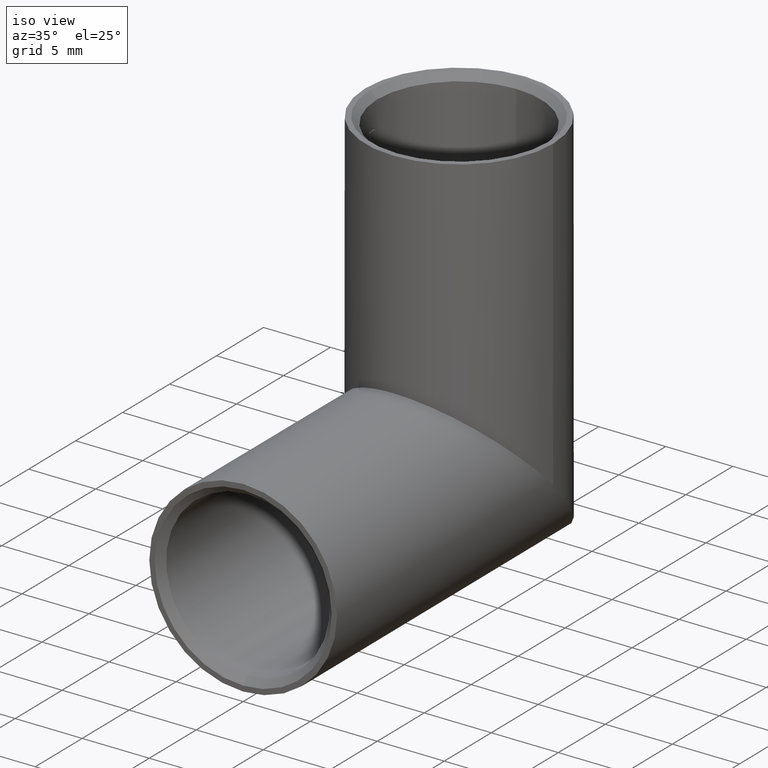
[diagram: clean part render]
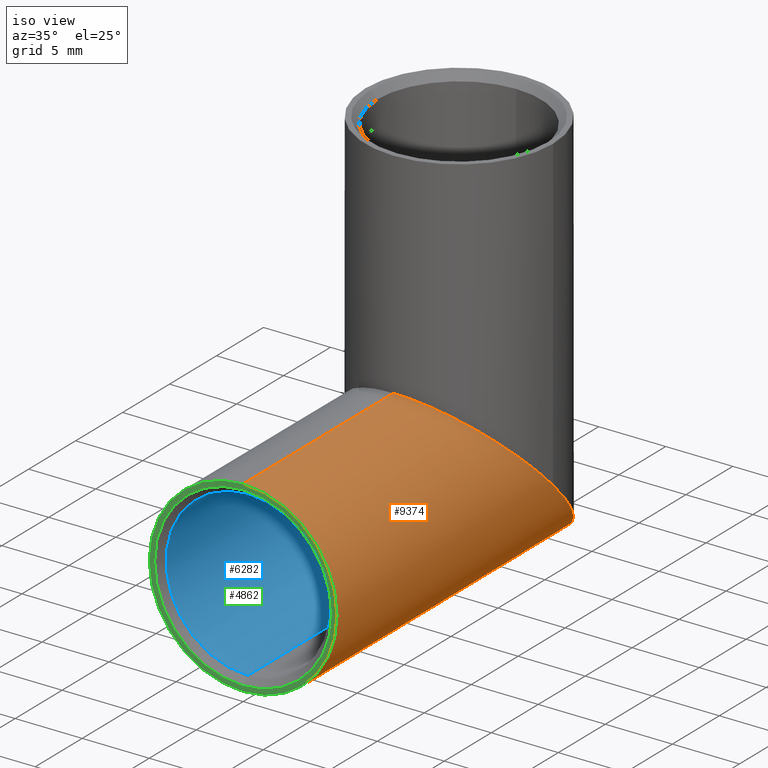
[diagram: same view with three faces highlighted in distinct colors, each labeled with its STEP entity id]
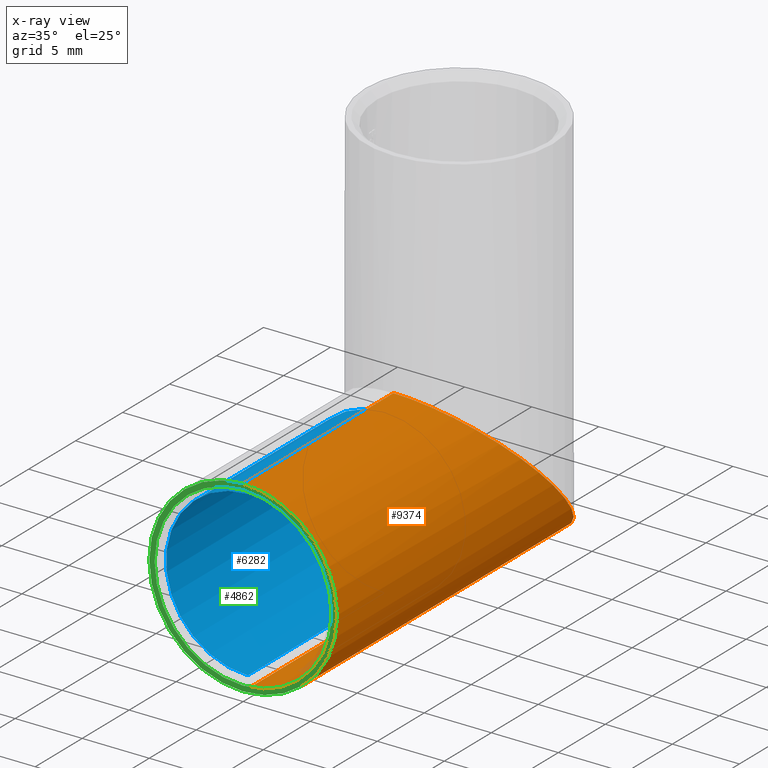
[diagram: x-ray of the same camera — body ghosted, the three highlighted faces saturated]
A machine part, iso view with three faces highlighted in distinct colors.
The next image is the same camera in x-ray (body ghosted, the three faces saturated) — at least one of them is partly hidden behind the body in this view.
Their STEP definitions:

[orange] entity #9374 — the highlighted cylindrical surface (partial cylindrical patch) has radius 7 mm, axis along (-0, -1, -0).
#20 = CARTESIAN_POINT ( 'NONE',  ( 7.000000000000001776, 18.89949493661166713, 4.100505063388334648 ) ) ;
#49 = DIRECTION ( 'NONE',  ( 0.000000000000000000, 0.000000000000000000, 1.000000000000000000 ) ) ;
#233 = CIRCLE ( 'NONE', #6719, 7.000000000000000000 ) ;
#540 = DIRECTION ( 'NONE',  ( -0.000000000000000000, -1.000000000000000000, -0.000000000000000000 ) ) ;
#1328 =( BOUNDED_CURVE ( )  B_SPLINE_CURVE ( 3, ( #3719, #8571, #12337, #11396 ),
 .UNSPECIFIED., .F., .T. ) 
 B_SPLINE_CURVE_WITH_KNOTS ( ( 4, 4 ),
 ( 1.570796326794896558, 3.141592653589793116 ),
 .UNSPECIFIED. ) 
 CURVE ( )  GEOMETRIC_REPRESENTATION_ITEM ( )  RATIONAL_B_SPLINE_CURVE ( ( 1.000000000000000000, 0.8047378541243649375, 0.8047378541243649375, 1.000000000000000000 ) ) 
 REPRESENTATION_ITEM ( '' )  );
#1496 = EDGE_CURVE ( 'NONE', #6506, #6492, #1328, .T. ) ;
#1540 = CARTESIAN_POINT ( 'NONE',  ( 8.572527594031473190E-16, 42.79898987322332715, 7.000000000000000000 ) ) ;
#1588 = EDGE_CURVE ( 'NONE', #4719, #9612, #5037, .T. ) ;
#1971 = EDGE_LOOP ( 'NONE', ( #8240, #4667, #2727, #7324, #3064 ) ) ;
#2242 = EDGE_CURVE ( 'NONE', #4719, #6506, #10195, .T. ) ;
#2411 = VERTEX_POINT ( 'NONE', #6684 ) ;
#2727 = ORIENTED_EDGE ( 'NONE', *, *, #2786, .T. ) ;
#2786 = EDGE_CURVE ( 'NONE', #9612, #2411, #233, .T. ) ;
#2975 = CARTESIAN_POINT ( 'NONE',  ( 0.000000000000000000, 0.000000000000000000, 0.000000000000000000 ) ) ;
#2976 = CYLINDRICAL_SURFACE ( 'NONE', #8872, 7.000000000000000000 ) ;
#2988 = CARTESIAN_POINT ( 'NONE',  ( 0.000000000000000000, 42.79898987322332715, 0.000000000000000000 ) ) ;
#3064 = ORIENTED_EDGE ( 'NONE', *, *, #1496, .F. ) ;
#3719 = CARTESIAN_POINT ( 'NONE',  ( 7.000000000000000000, 23.00000000000000000, 0.000000000000000000 ) ) ;
#4278 = DIRECTION ( 'NONE',  ( -0.000000000000000000, -1.000000000000000000, -0.000000000000000000 ) ) ;
#4306 = EDGE_CURVE ( 'NONE', #6492, #2411, #12334, .T. ) ;
#4430 = VECTOR ( 'NONE', #5364, 1000.000000000000000 ) ;
#4667 = ORIENTED_EDGE ( 'NONE', *, *, #1588, .T. ) ;
#4719 = VERTEX_POINT ( 'NONE', #5333 ) ;
#5037 = LINE ( 'NONE', #1540, #4430 ) ;
#5167 = DIRECTION ( 'NONE',  ( 0.000000000000000000, 0.000000000000000000, -1.000000000000000000 ) ) ;
#5333 = CARTESIAN_POINT ( 'NONE',  ( 8.572527594031473190E-16, 15.99999999999999645, 7.000000000000000000 ) ) ;
#5364 = DIRECTION ( 'NONE',  ( -0.000000000000000000, -1.000000000000000000, -0.000000000000000000 ) ) ;
#6157 = CARTESIAN_POINT ( 'NONE',  ( 0.000000000000000000, 42.79898987322332715, -7.000000000000000000 ) ) ;
#6492 = VERTEX_POINT ( 'NONE', #10904 ) ;
#6506 = VERTEX_POINT ( 'NONE', #11955 ) ;
#6684 = CARTESIAN_POINT ( 'NONE',  ( 0.000000000000000000, 0.000000000000000000, -7.000000000000000000 ) ) ;
#6719 = AXIS2_PLACEMENT_3D ( 'NONE', #2975, #7608, #49 ) ;
#7324 = ORIENTED_EDGE ( 'NONE', *, *, #4306, .F. ) ;
#7507 = CARTESIAN_POINT ( 'NONE',  ( 7.000000000000000000, 23.00000000000000000, 0.000000000000000000 ) ) ;
#7608 = DIRECTION ( 'NONE',  ( 0.000000000000000000, 1.000000000000000000, 0.000000000000000000 ) ) ;
#8240 = ORIENTED_EDGE ( 'NONE', *, *, #2242, .F. ) ;
#8335 = CARTESIAN_POINT ( 'NONE',  ( 8.572527594031473190E-16, 0.000000000000000000, 7.000000000000000000 ) ) ;
#8571 = CARTESIAN_POINT ( 'NONE',  ( 7.000000000000001776, 27.10050506338833642, -4.100505063388334648 ) ) ;
#8872 = AXIS2_PLACEMENT_3D ( 'NONE', #2988, #540, #5167 ) ;
#9374 = ADVANCED_FACE ( 'NONE', ( #11347 ), #2976, .T. ) ;
#9549 = CARTESIAN_POINT ( 'NONE',  ( 4.100505063388336424, 15.99999999999999645, 6.999999999999998224 ) ) ;
#9612 = VERTEX_POINT ( 'NONE', #8335 ) ;
#10195 =( BOUNDED_CURVE ( )  B_SPLINE_CURVE ( 3, ( #10539, #9549, #20, #7507 ),
 .UNSPECIFIED., .F., .F. ) 
 B_SPLINE_CURVE_WITH_KNOTS ( ( 4, 4 ),
 ( 1.224646799147353207E-16, 1.570796326794896558 ),
 .UNSPECIFIED. ) 
 CURVE ( )  GEOMETRIC_REPRESENTATION_ITEM ( )  RATIONAL_B_SPLINE_CURVE ( ( 1.000000000000000000, 0.8047378541243650485, 0.8047378541243650485, 1.000000000000000000 ) ) 
 REPRESENTATION_ITEM ( '' )  );
#10539 = CARTESIAN_POINT ( 'NONE',  ( 8.572527594031473190E-16, 15.99999999999999645, 7.000000000000000000 ) ) ;
#10904 = CARTESIAN_POINT ( 'NONE',  ( 0.000000000000000000, 30.00000000000000355, -7.000000000000000000 ) ) ;
#11347 = FACE_OUTER_BOUND ( 'NONE', #1971, .T. ) ;
#11396 = CARTESIAN_POINT ( 'NONE',  ( 0.000000000000000000, 30.00000000000000355, -7.000000000000000000 ) ) ;
#11712 = VECTOR ( 'NONE', #4278, 1000.000000000000000 ) ;
#11955 = CARTESIAN_POINT ( 'NONE',  ( 7.000000000000000000, 23.00000000000000000, 0.000000000000000000 ) ) ;
#12334 = LINE ( 'NONE', #6157, #11712 ) ;
#12337 = CARTESIAN_POINT ( 'NONE',  ( 4.100505063388337312, 30.00000000000000000, -6.999999999999998224 ) ) ;

[blue] entity #6282 — the highlighted cylindrical surface (partial cylindrical patch) has radius 6.1 mm, axis along (-0, -1, -0).
#336 = CARTESIAN_POINT ( 'NONE',  ( 0.000000000000000000, 15.00000000000000000, -6.099999999999999645 ) ) ;
#431 = CARTESIAN_POINT ( 'NONE',  ( 0.000000000000000000, 0.5000000000000022204, 0.000000000000000000 ) ) ;
#1191 = VERTEX_POINT ( 'NONE', #7775 ) ;
#1216 = EDGE_CURVE ( 'NONE', #1191, #6099, #2778, .T. ) ;
#1331 = AXIS2_PLACEMENT_3D ( 'NONE', #431, #2284, #6117 ) ;
#1355 = EDGE_CURVE ( 'NONE', #7873, #9371, #4284, .T. ) ;
#1817 = DIRECTION ( 'NONE',  ( 0.000000000000000000, 0.000000000000000000, -1.000000000000000000 ) ) ;
#1832 = DIRECTION ( 'NONE',  ( 0.000000000000000000, 0.000000000000000000, -1.000000000000000000 ) ) ;
#2284 = DIRECTION ( 'NONE',  ( 0.000000000000000000, -1.000000000000000000, 0.000000000000000000 ) ) ;
#2422 = CARTESIAN_POINT ( 'NONE',  ( 0.000000000000000000, 15.00000000000000000, -6.099999999999999645 ) ) ;
#2689 = EDGE_LOOP ( 'NONE', ( #3337, #9377, #9886, #7545 ) ) ;
#2778 = CIRCLE ( 'NONE', #1331, 6.099999999999999645 ) ;
#2779 = EDGE_CURVE ( 'NONE', #7873, #1191, #8118, .T. ) ;
#3337 = ORIENTED_EDGE ( 'NONE', *, *, #1355, .F. ) ;
#4284 = CIRCLE ( 'NONE', #6619, 6.099999999999999645 ) ;
#4391 = FACE_OUTER_BOUND ( 'NONE', #2689, .T. ) ;
#4653 = LINE ( 'NONE', #336, #11962 ) ;
#5608 = VECTOR ( 'NONE', #8765, 1000.000000000000000 ) ;
#6099 = VERTEX_POINT ( 'NONE', #10797 ) ;
#6117 = DIRECTION ( 'NONE',  ( 0.000000000000000000, 0.000000000000000000, 1.000000000000000000 ) ) ;
#6282 = ADVANCED_FACE ( 'NONE', ( #4391 ), #8069, .F. ) ;
#6619 = AXIS2_PLACEMENT_3D ( 'NONE', #11159, #12255, #1817 ) ;
#7490 = DIRECTION ( 'NONE',  ( -0.000000000000000000, -1.000000000000000000, -0.000000000000000000 ) ) ;
#7543 = AXIS2_PLACEMENT_3D ( 'NONE', #9238, #7490, #1832 ) ;
#7545 = ORIENTED_EDGE ( 'NONE', *, *, #8766, .F. ) ;
#7775 = CARTESIAN_POINT ( 'NONE',  ( 7.470345474798854293E-16, 0.5000000000000022204, 6.099999999999999645 ) ) ;
#7873 = VERTEX_POINT ( 'NONE', #12104 ) ;
#8069 = CYLINDRICAL_SURFACE ( 'NONE', #7543, 6.099999999999999645 ) ;
#8118 = LINE ( 'NONE', #11452, #5608 ) ;
#8765 = DIRECTION ( 'NONE',  ( -0.000000000000000000, -1.000000000000000000, -0.000000000000000000 ) ) ;
#8766 = EDGE_CURVE ( 'NONE', #9371, #6099, #4653, .T. ) ;
#8879 = DIRECTION ( 'NONE',  ( -0.000000000000000000, -1.000000000000000000, -0.000000000000000000 ) ) ;
#9238 = CARTESIAN_POINT ( 'NONE',  ( 0.000000000000000000, 15.00000000000000000, 0.000000000000000000 ) ) ;
#9371 = VERTEX_POINT ( 'NONE', #2422 ) ;
#9377 = ORIENTED_EDGE ( 'NONE', *, *, #2779, .T. ) ;
#9886 = ORIENTED_EDGE ( 'NONE', *, *, #1216, .T. ) ;
#10797 = CARTESIAN_POINT ( 'NONE',  ( 0.000000000000000000, 0.5000000000000022204, -6.099999999999999645 ) ) ;
#11159 = CARTESIAN_POINT ( 'NONE',  ( 0.000000000000000000, 15.00000000000000000, 0.000000000000000000 ) ) ;
#11452 = CARTESIAN_POINT ( 'NONE',  ( 7.470345474798854293E-16, 15.00000000000000000, 6.099999999999999645 ) ) ;
#11962 = VECTOR ( 'NONE', #8879, 1000.000000000000000 ) ;
#12104 = CARTESIAN_POINT ( 'NONE',  ( 7.470345474798854293E-16, 15.00000000000000000, 6.099999999999999645 ) ) ;
#12255 = DIRECTION ( 'NONE',  ( 0.000000000000000000, -1.000000000000000000, 0.000000000000000000 ) ) ;

[green] entity #4862 — the highlighted planar face has unit normal (0, 1, 0).
#49 = DIRECTION ( 'NONE',  ( 0.000000000000000000, 0.000000000000000000, 1.000000000000000000 ) ) ;
#233 = CIRCLE ( 'NONE', #6719, 7.000000000000000000 ) ;
#441 = EDGE_CURVE ( 'NONE', #2934, #7241, #11444, .T. ) ;
#720 = EDGE_LOOP ( 'NONE', ( #1560, #2970 ) ) ;
#832 = CIRCLE ( 'NONE', #5502, 7.000000000000000000 ) ;
#1001 = DIRECTION ( 'NONE',  ( 0.000000000000000000, 1.000000000000000000, 0.000000000000000000 ) ) ;
#1044 = PLANE ( 'NONE',  #4716 ) ;
#1066 = ORIENTED_EDGE ( 'NONE', *, *, #1826, .T. ) ;
#1129 = CARTESIAN_POINT ( 'NONE',  ( 0.000000000000000000, 0.000000000000000000, 0.000000000000000000 ) ) ;
#1560 = ORIENTED_EDGE ( 'NONE', *, *, #4598, .F. ) ;
#1826 = EDGE_CURVE ( 'NONE', #7241, #2934, #3978, .T. ) ;
#1934 = DIRECTION ( 'NONE',  ( 0.000000000000000000, 0.000000000000000000, 1.000000000000000000 ) ) ;
#2090 = CARTESIAN_POINT ( 'NONE',  ( 0.000000000000000000, 0.000000000000000000, 0.000000000000000000 ) ) ;
#2411 = VERTEX_POINT ( 'NONE', #6684 ) ;
#2786 = EDGE_CURVE ( 'NONE', #9612, #2411, #233, .T. ) ;
#2934 = VERTEX_POINT ( 'NONE', #11830 ) ;
#2970 = ORIENTED_EDGE ( 'NONE', *, *, #2786, .F. ) ;
#2975 = CARTESIAN_POINT ( 'NONE',  ( 0.000000000000000000, 0.000000000000000000, 0.000000000000000000 ) ) ;
#3398 = EDGE_LOOP ( 'NONE', ( #11839, #1066 ) ) ;
#3978 = CIRCLE ( 'NONE', #6956, 6.600000000000001421 ) ;
#4598 = EDGE_CURVE ( 'NONE', #2411, #9612, #832, .T. ) ;
#4716 = AXIS2_PLACEMENT_3D ( 'NONE', #1129, #8568, #7674 ) ;
#4862 = ADVANCED_FACE ( 'NONE', ( #5577, #11550 ), #1044, .F. ) ;
#5310 = DIRECTION ( 'NONE',  ( 0.000000000000000000, 1.000000000000000000, 0.000000000000000000 ) ) ;
#5502 = AXIS2_PLACEMENT_3D ( 'NONE', #2090, #8730, #9706 ) ;
#5577 = FACE_BOUND ( 'NONE', #3398, .T. ) ;
#6684 = CARTESIAN_POINT ( 'NONE',  ( 0.000000000000000000, 0.000000000000000000, -7.000000000000000000 ) ) ;
#6719 = AXIS2_PLACEMENT_3D ( 'NONE', #2975, #7608, #49 ) ;
#6956 = AXIS2_PLACEMENT_3D ( 'NONE', #11033, #5310, #9982 ) ;
#7241 = VERTEX_POINT ( 'NONE', #11737 ) ;
#7608 = DIRECTION ( 'NONE',  ( 0.000000000000000000, 1.000000000000000000, 0.000000000000000000 ) ) ;
#7674 = DIRECTION ( 'NONE',  ( 0.000000000000000000, -0.000000000000000000, 1.000000000000000000 ) ) ;
#8335 = CARTESIAN_POINT ( 'NONE',  ( 8.572527594031473190E-16, 0.000000000000000000, 7.000000000000000000 ) ) ;
#8568 = DIRECTION ( 'NONE',  ( 0.000000000000000000, 1.000000000000000000, 0.000000000000000000 ) ) ;
#8730 = DIRECTION ( 'NONE',  ( 0.000000000000000000, 1.000000000000000000, 0.000000000000000000 ) ) ;
#9612 = VERTEX_POINT ( 'NONE', #8335 ) ;
#9706 = DIRECTION ( 'NONE',  ( 0.000000000000000000, 0.000000000000000000, 1.000000000000000000 ) ) ;
#9982 = DIRECTION ( 'NONE',  ( 0.000000000000000000, 0.000000000000000000, 1.000000000000000000 ) ) ;
#10586 = CARTESIAN_POINT ( 'NONE',  ( 0.000000000000000000, 0.000000000000000000, 0.000000000000000000 ) ) ;
#11033 = CARTESIAN_POINT ( 'NONE',  ( 0.000000000000000000, 0.000000000000000000, 0.000000000000000000 ) ) ;
#11444 = CIRCLE ( 'NONE', #12217, 6.600000000000001421 ) ;
#11550 = FACE_OUTER_BOUND ( 'NONE', #720, .T. ) ;
#11737 = CARTESIAN_POINT ( 'NONE',  ( 8.082668874372532992E-16, 0.000000000000000000, 6.600000000000001421 ) ) ;
#11830 = CARTESIAN_POINT ( 'NONE',  ( 0.000000000000000000, 0.000000000000000000, -6.600000000000001421 ) ) ;
#11839 = ORIENTED_EDGE ( 'NONE', *, *, #441, .T. ) ;
#12217 = AXIS2_PLACEMENT_3D ( 'NONE', #10586, #1001, #1934 ) ;